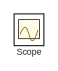
[diagram: root canvas - part 1/2, top left region]
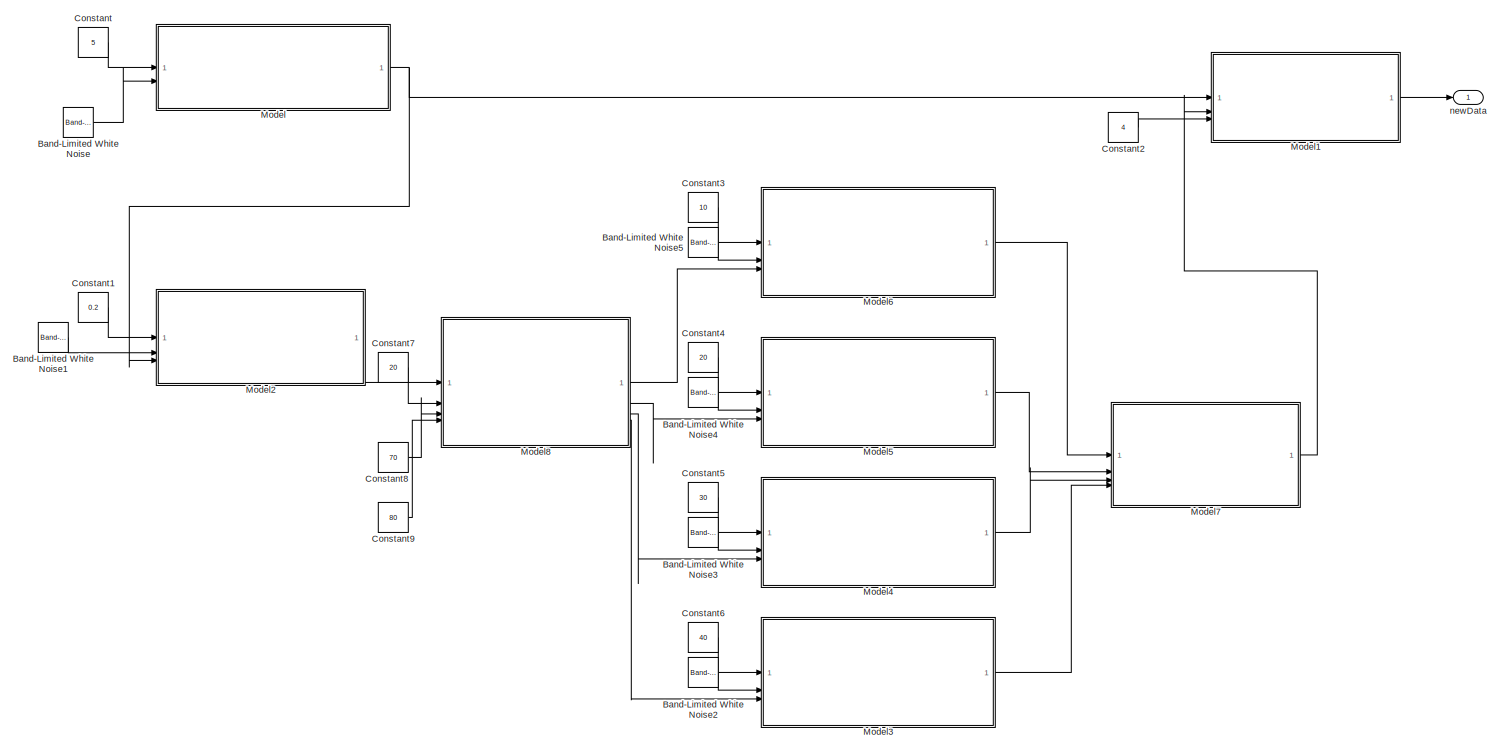
[diagram: root canvas - part 2/2, most of the canvas]
MODEL slx_1d81bc7e76e5
KIND model
CONFIG AbsTol = auto
CONFIG EnableMultiTasking = off
CONFIG FixedStep = auto
CONFIG MaxStep = auto
CONFIG MinStep = auto
CONFIG RelTol = 1e-3
CONFIG SampleTimeConstraint = Unconstrained
CONFIG SolverName = VariableStepAuto
CONFIG StartTime = 0.0
CONFIG StopTime = 10.0
BLOCK [Reference] Band-Limited White Noise  REF=simulink/Sources/Band-Limited
White Noise
  SourceBlock = simulink/Sources/Band-Limited\nWhite Noise
  SourceType = Band-Limited White Noise.
BLOCK [Reference] Band-Limited White Noise1  REF=simulink/Sources/Band-Limited
White Noise
  SourceBlock = simulink/Sources/Band-Limited\nWhite Noise
  SourceType = Band-Limited White Noise.
BLOCK [Reference] Band-Limited White Noise2  REF=simulink/Sources/Band-Limited
White Noise
  SourceBlock = simulink/Sources/Band-Limited\nWhite Noise
  SourceType = Band-Limited White Noise.
BLOCK [Reference] Band-Limited White Noise3  REF=simulink/Sources/Band-Limited
White Noise
  SourceBlock = simulink/Sources/Band-Limited\nWhite Noise
  SourceType = Band-Limited White Noise.
BLOCK [Reference] Band-Limited White Noise4  REF=simulink/Sources/Band-Limited
White Noise
  SourceBlock = simulink/Sources/Band-Limited\nWhite Noise
  SourceType = Band-Limited White Noise.
BLOCK [Reference] Band-Limited White Noise5  REF=simulink/Sources/Band-Limited
White Noise
  SourceBlock = simulink/Sources/Band-Limited\nWhite Noise
  SourceType = Band-Limited White Noise.
BLOCK [Constant] Constant
  Value = 5
BLOCK [Constant] Constant1
  Value = 0.2
BLOCK [Constant] Constant2
  Value = 4
BLOCK [Constant] Constant3
  Value = 10
BLOCK [Constant] Constant4
  Value = 20
BLOCK [Constant] Constant5
  Value = 30
BLOCK [Constant] Constant6
  Value = 40
BLOCK [Constant] Constant7
  Value = 20
BLOCK [Constant] Constant8
  Value = 70
BLOCK [Constant] Constant9
  Value = 80
BLOCK [ModelReference] Model
  ModelNameDialog = UpdateTimeModel.slx
  ModelReferenceVersion = 5.2
BLOCK [ModelReference] Model1
  ModelNameDialog = LoopCounter.slx
  ModelReferenceVersion = 5.0
BLOCK [ModelReference] Model2
  ModelNameDialog = UpdateTimeModel.slx
  ModelReferenceVersion = 5.2
BLOCK [ModelReference] Model3
  ModelNameDialog = UpdateTimeModel.slx
  ModelReferenceVersion = 5.2
BLOCK [ModelReference] Model4
  ModelNameDialog = UpdateTimeModel.slx
  ModelReferenceVersion = 5.2
BLOCK [ModelReference] Model5
  ModelNameDialog = UpdateTimeModel.slx
  ModelReferenceVersion = 5.2
BLOCK [ModelReference] Model6
  ModelNameDialog = UpdateTimeModel.slx
  ModelReferenceVersion = 5.2
BLOCK [ModelReference] Model7
  ModelNameDialog = mseCaseMuxOfFour.slx
  ModelReferenceVersion = 1.5
BLOCK [ModelReference] Model8
  ModelNameDialog = mseCaseSplitOfFour.slx
  ModelReferenceVersion = 1.13
BLOCK [Scope] Scope
  Floating = off
  IOType = viewer
  NumInputPorts = 1
  ScopeSpecificationString = Simulink.scopes.TimeScopeBlockCfg('CurrentConfiguration', extmgr.ConfigurationSet(extmgr.Configuration('Core','General UI',true),extmgr.Configuration('Core','Source UI',true),extmgr.Configuration('Sources','WiredSimulink',true),extmgr.Configuration('Visuals','Time Domain',true,'SerializedDisplays',{struct('MinYLimReal','-25.96495','MaxYLimReal','210.97383','YLabelReal','','MinYLimMag','0.00000','M...<+1675ch>
BLOCK [Outport] newData
LINE Band-Limited White Noise1:1 -> Model2:2
LINE Band-Limited White Noise2:1 -> Model3:2
LINE Band-Limited White Noise3:1 -> Model4:2
LINE Band-Limited White Noise4:1 -> Model5:2
LINE Band-Limited White Noise5:1 -> Model6:2
LINE Band-Limited White Noise:1 -> Model:2
LINE Constant1:1 -> Model2:1
LINE Constant2:1 -> Model1:3
LINE Constant3:1 -> Model6:1
LINE Constant4:1 -> Model5:1
LINE Constant5:1 -> Model4:1
LINE Constant6:1 -> Model3:1
LINE Constant7:1 -> Model8:2
LINE Constant8:1 -> Model8:3
LINE Constant9:1 -> Model8:4
LINE Constant:1 -> Model:1
LINE Model1:1 -> newData:1
LINE Model2:1 -> Model8:1
LINE Model3:1 -> Model7:4
LINE Model4:1 -> Model7:3
LINE Model5:1 -> Model7:2
LINE Model6:1 -> Model7:1
LINE Model7:1 -> Model1:2
LINE Model8:1 -> Model6:3
LINE Model8:2 -> Model5:3
LINE Model8:3 -> Model4:3
LINE Model8:4 -> Model3:3
NET Model:1 -> Model1:1, Model2:3
note: NET lines group one-source signal fan-out (src -> all destinations, sorted); 1:1 wires keep LINE
